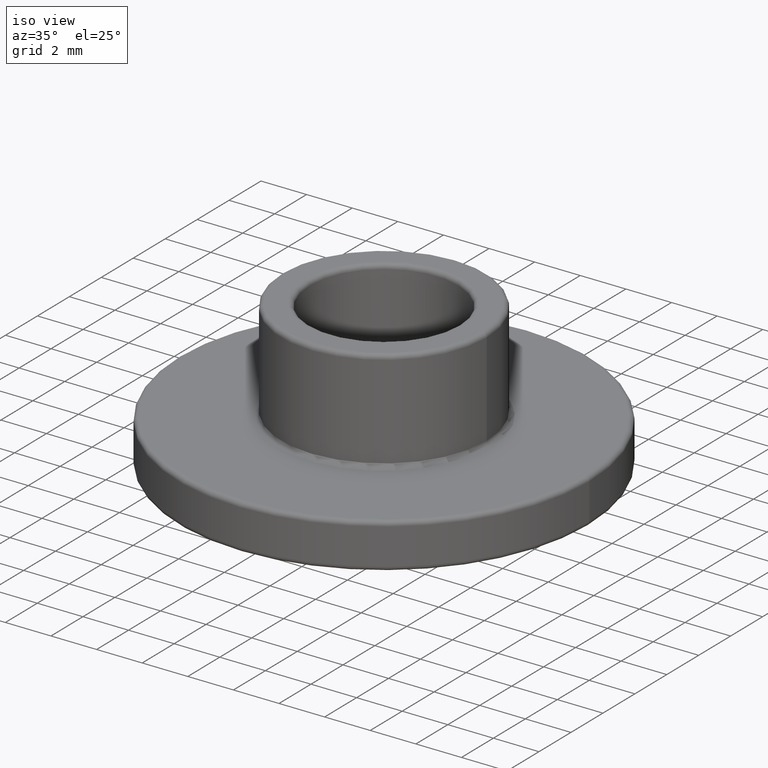
[diagram: clean part render]
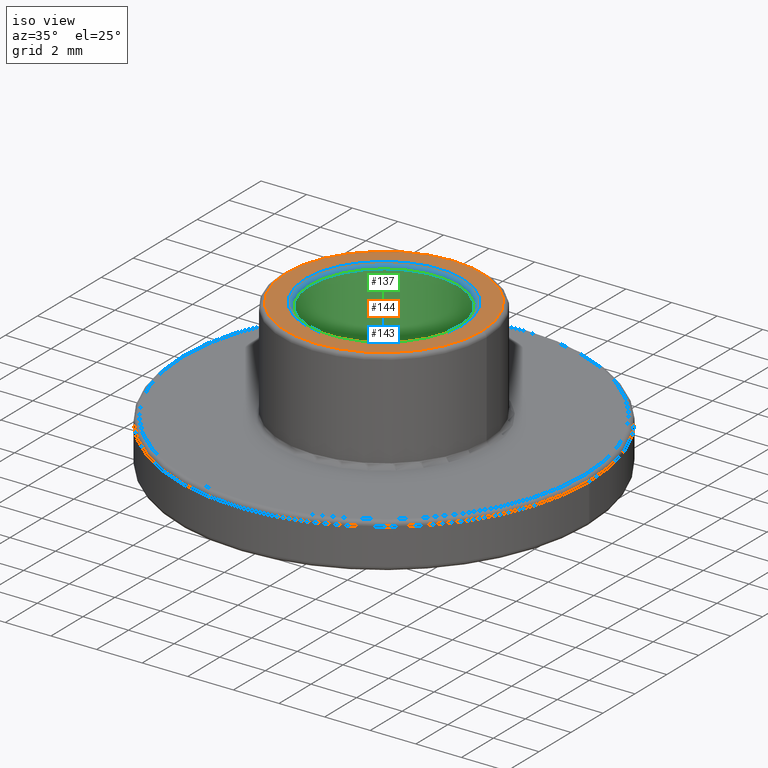
[diagram: same view with three faces highlighted in distinct colors, each labeled with its STEP entity id]
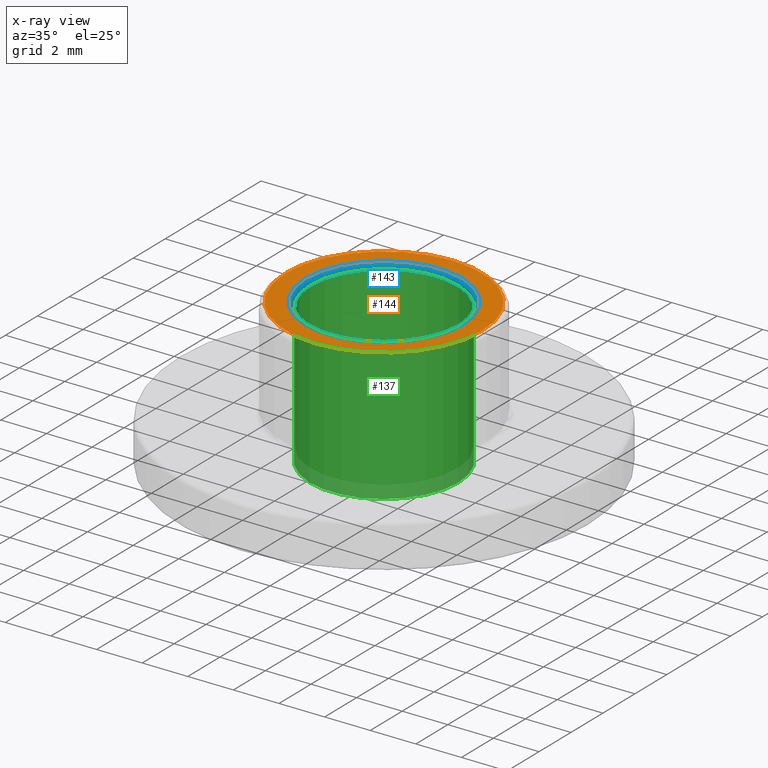
[diagram: x-ray of the same camera — body ghosted, the three highlighted faces saturated]
A machine part, iso view with three faces highlighted in distinct colors.
The next image is the same camera in x-ray (body ghosted, the three faces saturated) — at least one of them is partly hidden behind the body in this view.
Their STEP definitions:

[orange] entity #144 — the highlighted planar face has unit normal (0, 0, 1).
#20=PLANE('',#169);
#30=FACE_BOUND('',#64,.T.);
#42=FACE_OUTER_BOUND('',#63,.T.);
#63=EDGE_LOOP('',(#123));
#64=EDGE_LOOP('',(#124));
#79=CIRCLE('',#168,3.45);
#80=CIRCLE('',#170,4.3);
#91=VERTEX_POINT('',#253);
#92=VERTEX_POINT('',#256);
#103=EDGE_CURVE('',#91,#91,#79,.T.);
#104=EDGE_CURVE('',#92,#92,#80,.T.);
#123=ORIENTED_EDGE('',*,*,#104,.F.);
#124=ORIENTED_EDGE('',*,*,#103,.F.);
#144=ADVANCED_FACE('',(#42,#30),#20,.T.);
#168=AXIS2_PLACEMENT_3D('',#254,#213,#214);
#169=AXIS2_PLACEMENT_3D('',#255,#215,#216);
#170=AXIS2_PLACEMENT_3D('',#257,#217,#218);
#213=DIRECTION('center_axis',(0.,0.,1.));
#214=DIRECTION('ref_axis',(-1.,-1.22464679914735E-16,0.));
#215=DIRECTION('center_axis',(0.,0.,1.));
#216=DIRECTION('ref_axis',(1.,0.,0.));
#217=DIRECTION('center_axis',(0.,0.,-1.));
#218=DIRECTION('ref_axis',(-1.,0.,0.));
#253=CARTESIAN_POINT('',(3.45,8.45006291411674E-16,4.5));
#254=CARTESIAN_POINT('Origin',(0.,0.,4.5));
#255=CARTESIAN_POINT('Origin',(-2.51521111380092E-16,1.02798428206033E-16,
4.5));
#256=CARTESIAN_POINT('',(4.3,-5.26598123633362E-16,4.5));
#257=CARTESIAN_POINT('Origin',(0.,0.,4.5));

[blue] entity #143 — the highlighted toroidal blend (fillet) surface has major radius 3.45 mm and minor (blend) radius 0.2 mm.
#29=FACE_BOUND('',#62,.T.);
#41=FACE_OUTER_BOUND('',#61,.T.);
#61=EDGE_LOOP('',(#121));
#62=EDGE_LOOP('',(#122));
#72=CIRCLE('',#155,3.25);
#79=CIRCLE('',#168,3.45);
#84=VERTEX_POINT('',#233);
#91=VERTEX_POINT('',#253);
#96=EDGE_CURVE('',#84,#84,#72,.T.);
#103=EDGE_CURVE('',#91,#91,#79,.T.);
#121=ORIENTED_EDGE('',*,*,#96,.T.);
#122=ORIENTED_EDGE('',*,*,#103,.T.);
#132=TOROIDAL_SURFACE('',#167,3.45,0.2);
#143=ADVANCED_FACE('',(#41,#29),#132,.T.);
#155=AXIS2_PLACEMENT_3D('',#234,#187,#188);
#167=AXIS2_PLACEMENT_3D('',#252,#211,#212);
#168=AXIS2_PLACEMENT_3D('',#254,#213,#214);
#187=DIRECTION('center_axis',(0.,0.,-1.));
#188=DIRECTION('ref_axis',(-1.,-1.22464679914735E-16,0.));
#211=DIRECTION('center_axis',(0.,0.,-1.));
#212=DIRECTION('ref_axis',(-1.,0.,0.));
#213=DIRECTION('center_axis',(0.,0.,1.));
#214=DIRECTION('ref_axis',(-1.,-1.22464679914735E-16,0.));
#233=CARTESIAN_POINT('',(3.25,0.,4.3));
#234=CARTESIAN_POINT('Origin',(0.,0.,4.3));
#252=CARTESIAN_POINT('Origin',(0.,0.,4.3));
#253=CARTESIAN_POINT('',(3.45,8.45006291411674E-16,4.5));
#254=CARTESIAN_POINT('Origin',(0.,0.,4.5));

[green] entity #137 — the highlighted cylindrical surface (bore or boss wall) has radius 3.25 mm, axis along (0, 0, 1).
#15=CYLINDRICAL_SURFACE('',#154,3.25);
#23=FACE_BOUND('',#50,.T.);
#35=FACE_OUTER_BOUND('',#49,.T.);
#49=EDGE_LOOP('',(#109));
#50=EDGE_LOOP('',(#110));
#69=CIRCLE('',#150,3.25);
#72=CIRCLE('',#155,3.25);
#81=VERTEX_POINT('',#225);
#84=VERTEX_POINT('',#233);
#93=EDGE_CURVE('',#81,#81,#69,.T.);
#96=EDGE_CURVE('',#84,#84,#72,.T.);
#109=ORIENTED_EDGE('',*,*,#96,.F.);
#110=ORIENTED_EDGE('',*,*,#93,.F.);
#137=ADVANCED_FACE('',(#35,#23),#15,.F.);
#150=AXIS2_PLACEMENT_3D('',#226,#177,#178);
#154=AXIS2_PLACEMENT_3D('',#232,#185,#186);
#155=AXIS2_PLACEMENT_3D('',#234,#187,#188);
#177=DIRECTION('center_axis',(0.,0.,1.));
#178=DIRECTION('ref_axis',(1.,0.,0.));
#185=DIRECTION('center_axis',(0.,0.,1.));
#186=DIRECTION('ref_axis',(1.,0.,0.));
#187=DIRECTION('center_axis',(0.,0.,-1.));
#188=DIRECTION('ref_axis',(-1.,-1.22464679914735E-16,0.));
#225=CARTESIAN_POINT('',(-3.25,-3.9801020972289E-16,-1.8));
#226=CARTESIAN_POINT('Origin',(0.,0.,-1.8));
#232=CARTESIAN_POINT('Origin',(0.,0.,-21.7726093108393));
#233=CARTESIAN_POINT('',(3.25,0.,4.3));
#234=CARTESIAN_POINT('Origin',(0.,0.,4.3));